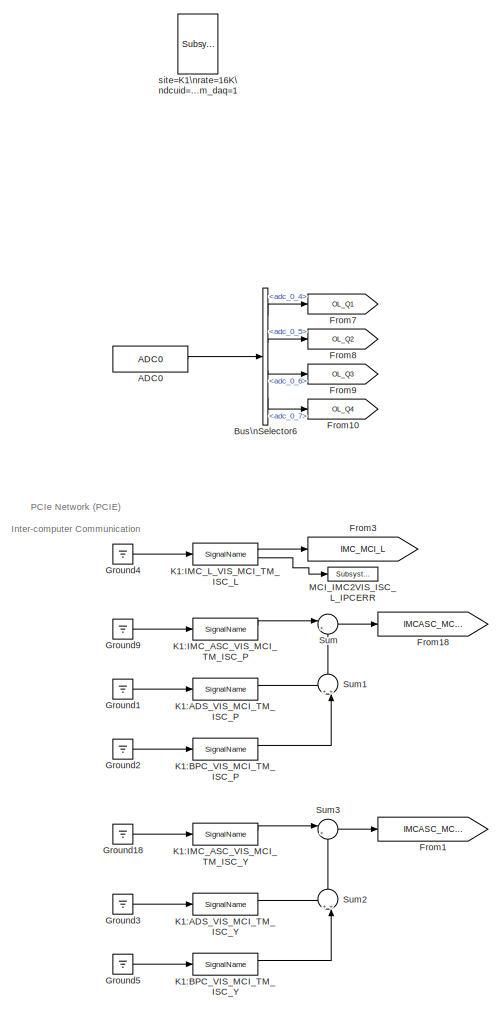
[diagram: root canvas - part 1/3, middle left region]
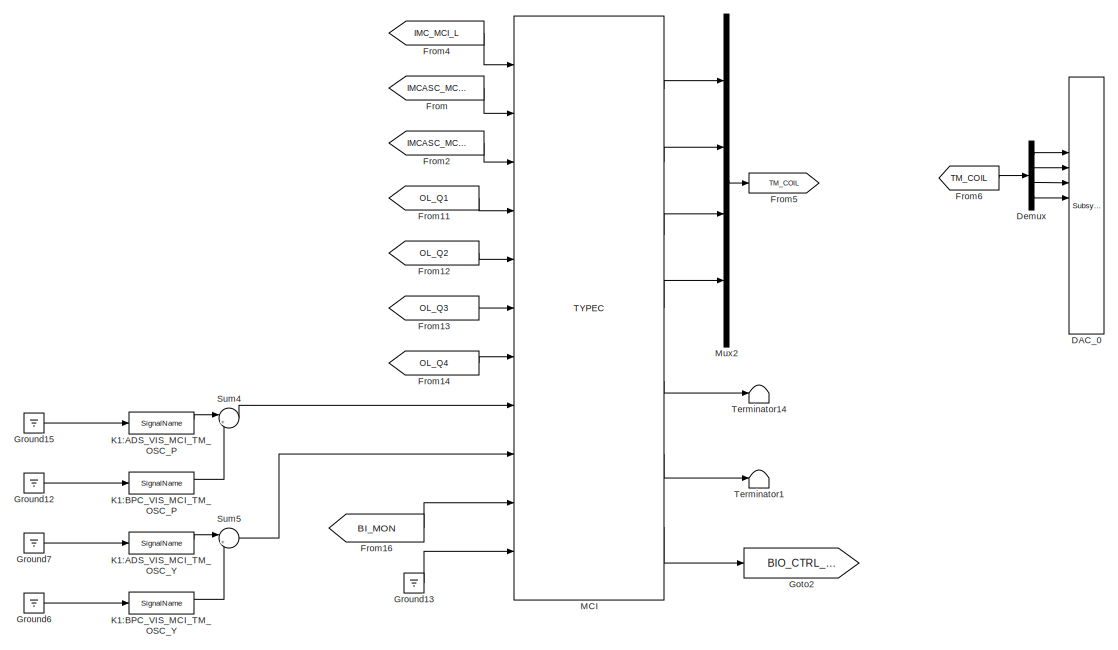
[diagram: root canvas - part 2/3, top center region]
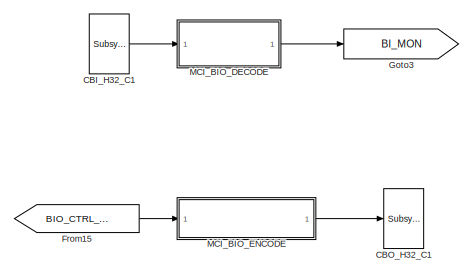
[diagram: root canvas - part 3/3, bottom right region]
MODEL k1vismci
KIND model
BLOCK [Reference] ADC0  REF=cdsAdcx0/ADC0
  AttributesFormatString = %<Description>\\n%<Tag>
  Description = type-GSC_16AI64SSA\ncard_num=0
  Ports = [0, 1]
  SID = 408
  SourceBlock = cdsAdcx0/ADC0
  SourceType = SubSystem
  Tag = cdsAdc
BLOCK [BusSelector] Bus\nSelector6
  AttributesFormatString = %<Description>
  Description = ADC Selector
  OutputSignals = adc_0_4,adc_0_5,adc_0_6,adc_0_7
  Ports = [1, 4]
  SID = 412
BLOCK [Reference] CBI_H32_C1  REF=cdsCDI64/Subsystem
  AttributesFormatString = %<Tag>\\n%<Description>
  Description = card_num=3
  Ports = [0, 1]
  SID = 615
  SourceBlock = cdsCDI64/Subsystem
  SourceType = SubSystem
  Tag = cdsCDI64
BLOCK [Reference] CBO_H32_C1  REF=cdsCDO64/Subsystem
  AttributesFormatString = %<Tag>\\n%<Description>
  Description = card_num=3
  Ports = [1]
  SID = 616
  SourceBlock = cdsCDO64/Subsystem
  SourceType = SubSystem
  Tag = cdsCDO64
BLOCK [Reference] DAC_0  REF=dac/Subsystem  (lib defined in slx_40ef132df75b, slx_b7657ccccc5b, +4 more)
  AttributesFormatString = %<Description>
  Description = type=GSC_16AO16,\ncard_num=0
  Ports = [16]
  SID = 477
  SourceBlock = dac/Subsystem
  SourceType = SubSystem
BLOCK [Demux] Demux
  DisplayOption = bar
  Ports = [1, 4]
  SID = 540
BLOCK [From] From
  GotoTag = IMCASC_MCI_P
  SID = 516
BLOCK [Goto] From1
  GotoTag = IMCASC_MCI_Y
  SID = 519
BLOCK [Goto] From10
  GotoTag = OL_Q4
  SID = 545
BLOCK [From] From11
  GotoTag = OL_Q1
  SID = 546
BLOCK [From] From12
  GotoTag = OL_Q2
  SID = 547
BLOCK [From] From13
  GotoTag = OL_Q3
  SID = 548
BLOCK [From] From14
  GotoTag = OL_Q4
  SID = 549
BLOCK [From] From15
  GotoTag = BIO_CTRL_OUT
  SID = 557
BLOCK [From] From16
  GotoTag = BI_MON
  SID = 609
BLOCK [Goto] From18
  GotoTag = IMCASC_MCI_P
  SID = 515
BLOCK [From] From2
  GotoTag = IMCASC_MCI_Y
  SID = 527
BLOCK [Goto] From3
  GotoTag = IMC_MCI_L
  SID = 529
BLOCK [From] From4
  GotoTag = IMC_MCI_L
  SID = 530
BLOCK [Goto] From5
  GotoTag = TM_COIL
  SID = 532
BLOCK [From] From6
  GotoTag = TM_COIL
  SID = 533
BLOCK [Goto] From7
  GotoTag = OL_Q1
  SID = 542
BLOCK [Goto] From8
  GotoTag = OL_Q2
  SID = 543
BLOCK [Goto] From9
  GotoTag = OL_Q3
  SID = 544
BLOCK [Goto] Goto2
  GotoTag = BIO_CTRL_OUT
  SID = 610
BLOCK [Goto] Goto3
  GotoTag = BI_MON
  SID = 558
BLOCK [Ground] Ground1
  SID = 617
BLOCK [Ground] Ground12
  SID = 512
BLOCK [Ground] Ground13
  SID = 468
BLOCK [Ground] Ground15
  SID = 470
BLOCK [Ground] Ground18
  SID = 520
BLOCK [Ground] Ground2
  SID = 621
BLOCK [Ground] Ground3
  SID = 623
BLOCK [Ground] Ground4
  SID = 481
BLOCK [Ground] Ground5
  SID = 624
BLOCK [Ground] Ground6
  SID = 637
BLOCK [Ground] Ground7
  SID = 638
BLOCK [Ground] Ground9
  SID = 509
BLOCK [Reference] K1:ADS_VIS_MCI_TM_ISC_P  REF=cdsIPCx/SignalName
  AttributesFormatString = %<Tag>
  Description = Inter-Process Communication via PCI Express network.
  Ports = [1, 2]
  SID = 618
  SourceBlock = cdsIPCx/SignalName
  SourceType = SubSystem
  Tag = cdsIPCx_PCIE
BLOCK [Reference] K1:ADS_VIS_MCI_TM_ISC_Y  REF=cdsIPCx/SignalName
  AttributesFormatString = %<Tag>
  Description = Inter-Process Communication via PCI Express network.
  Ports = [1, 2]
  SID = 625
  SourceBlock = cdsIPCx/SignalName
  SourceType = SubSystem
  Tag = cdsIPCx_PCIE
BLOCK [Reference] K1:ADS_VIS_MCI_TM_OSC_P  REF=cdsIPCx/SignalName
  AttributesFormatString = %<Tag>
  Description = Inter-Process Communication via PCI Express network.
  Ports = [1, 2]
  SID = 630
  SourceBlock = cdsIPCx/SignalName
  SourceType = SubSystem
  Tag = cdsIPCx_PCIE
BLOCK [Reference] K1:ADS_VIS_MCI_TM_OSC_Y  REF=cdsIPCx/SignalName
  AttributesFormatString = %<Tag>
  Description = Inter-Process Communication via PCI Express network.
  Ports = [1, 2]
  SID = 632
  SourceBlock = cdsIPCx/SignalName
  SourceType = SubSystem
  Tag = cdsIPCx_PCIE
BLOCK [Reference] K1:BPC_VIS_MCI_TM_ISC_P  REF=cdsIPCx/SignalName
  AttributesFormatString = %<Tag>
  Description = Inter-Process Communication via PCI Express network.
  Ports = [1, 2]
  SID = 622
  SourceBlock = cdsIPCx/SignalName
  SourceType = SubSystem
  Tag = cdsIPCx_PCIE
BLOCK [Reference] K1:BPC_VIS_MCI_TM_ISC_Y  REF=cdsIPCx/SignalName
  AttributesFormatString = %<Tag>
  Description = Inter-Process Communication via PCI Express network.
  Ports = [1, 2]
  SID = 626
  SourceBlock = cdsIPCx/SignalName
  SourceType = SubSystem
  Tag = cdsIPCx_PCIE
BLOCK [Reference] K1:BPC_VIS_MCI_TM_OSC_P  REF=cdsIPCx/SignalName
  AttributesFormatString = %<Tag>
  Description = Inter-Process Communication via PCI Express network.
  Ports = [1, 2]
  SID = 631
  SourceBlock = cdsIPCx/SignalName
  SourceType = SubSystem
  Tag = cdsIPCx_PCIE
BLOCK [Reference] K1:BPC_VIS_MCI_TM_OSC_Y  REF=cdsIPCx/SignalName
  AttributesFormatString = %<Tag>
  Description = Inter-Process Communication via PCI Express network.
  Ports = [1, 2]
  SID = 633
  SourceBlock = cdsIPCx/SignalName
  SourceType = SubSystem
  Tag = cdsIPCx_PCIE
BLOCK [Reference] K1:IMC_ASC_VIS_MCI_TM_ISC_P  REF=cdsIPCx/SignalName
  AttributesFormatString = %<Tag>
  Description = Inter-Process Communication via PCI Express network.
  Ports = [1, 2]
  SID = 508
  SourceBlock = cdsIPCx/SignalName
  SourceType = SubSystem
  Tag = cdsIPCx_PCIE
BLOCK [Reference] K1:IMC_ASC_VIS_MCI_TM_ISC_Y  REF=cdsIPCx/SignalName
  AttributesFormatString = %<Tag>
  Description = Inter-Process Communication via PCI Express network.
  Ports = [1, 2]
  SID = 521
  SourceBlock = cdsIPCx/SignalName
  SourceType = SubSystem
  Tag = cdsIPCx_PCIE
BLOCK [Reference] K1:IMC_L_VIS_MCI_TM_ISC_L  REF=cdsIPCx/SignalName
  AttributesFormatString = %<Tag>
  Description = Inter-Process Communication via PCI Express network.
  Ports = [1, 2]
  SID = 479
  SourceBlock = cdsIPCx/SignalName
  SourceType = SubSystem
  Tag = cdsIPCx_PCIE
BLOCK [Reference] MCI  REF=TYPEC_SINGLE_MASTER/TYPEC
  AttributesFormatString = %<Description>
  Description = TYPEC SINGLE MASTER
  Ports = [11, 7]
  SID = 611
  SourceBlock = TYPEC_SINGLE_MASTER/TYPEC
  SourceType = SubSystem
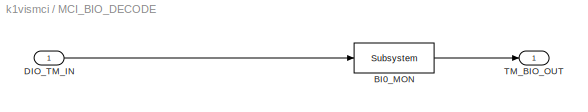
BLOCK [SubSystem] MCI_BIO_DECODE
  Ports = [1, 1]
  RequestExecContextInheritance = off
  SID = 559
  Variant = off
BLOCK [Reference] MCI_BIO_DECODE/BI0_MON  REF=cdsEpicsOut/Subsystem
  AttributesFormatString = %<Tag>
  Description = Purpose:                                          \nOutput a FE signal to an EPICS channel.           \n                                                  \nOperation:                                        \nTakes input value and passes it to EPICS record.  \n                                                  \nUsage:                                            \nName the part with the desired EPICS...<+14ch>  <repeated x3 — deduplicated; at blocks: BI0_MON, DIO_0_OUT, MCI_IMC2VIS_ISC_L_IPCERR>
  Ports = [1, 1]
  SID = 561
  SourceBlock = cdsEpicsOut/Subsystem
  SourceType = SubSystem
  Tag = cdsEpicsOutput
BLOCK [Inport] MCI_BIO_DECODE/DIO_TM_IN
  IconDisplay = Port number
  SID = 560
BLOCK [Outport] MCI_BIO_DECODE/TM_BIO_OUT
  IconDisplay = Port number
  SID = 562
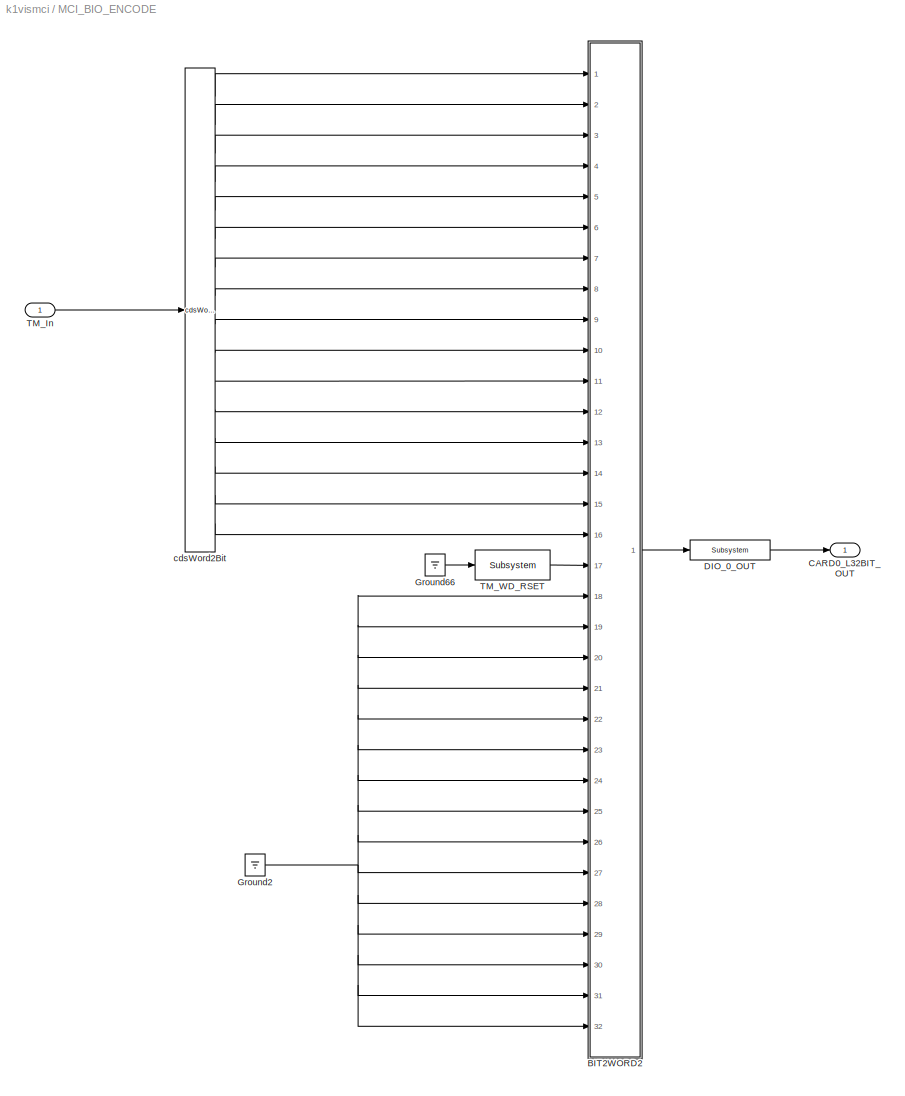
BLOCK [SubSystem] MCI_BIO_ENCODE
  Ports = [1, 1]
  RequestExecContextInheritance = off
  SID = 563
  Variant = off
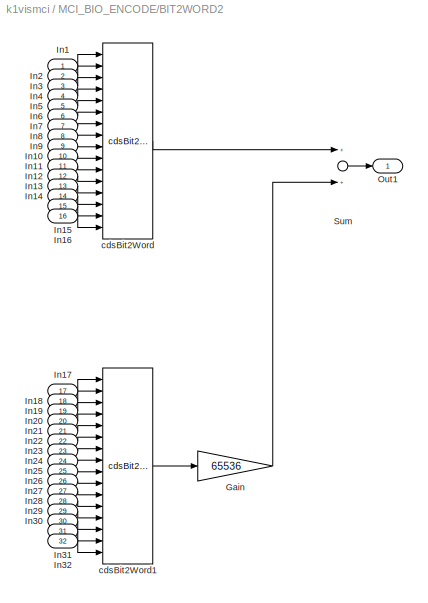
BLOCK [SubSystem] MCI_BIO_ENCODE/BIT2WORD2
  Ports = [32, 1]
  RequestExecContextInheritance = off
  SID = 565
  Variant = off
BLOCK [Gain] MCI_BIO_ENCODE/BIT2WORD2/Gain
  Gain = 65536
  OutDataTypeStr = Inherit: Inherit via internal rule
  ParamDataTypeStr = Inherit: Inherit via internal rule
  SID = 598
  SaturateOnIntegerOverflow = off
BLOCK [Inport] MCI_BIO_ENCODE/BIT2WORD2/In1
  IconDisplay = Port number
  SID = 566
BLOCK [Inport] MCI_BIO_ENCODE/BIT2WORD2/In10
  IconDisplay = Port number
  Port = 10
  SID = 575
BLOCK [Inport] MCI_BIO_ENCODE/BIT2WORD2/In11
  IconDisplay = Port number
  Port = 11
  SID = 576
BLOCK [Inport] MCI_BIO_ENCODE/BIT2WORD2/In12
  IconDisplay = Port number
  Port = 12
  SID = 577
BLOCK [Inport] MCI_BIO_ENCODE/BIT2WORD2/In13
  IconDisplay = Port number
  Port = 13
  SID = 578
BLOCK [Inport] MCI_BIO_ENCODE/BIT2WORD2/In14
  IconDisplay = Port number
  Port = 14
  SID = 579
BLOCK [Inport] MCI_BIO_ENCODE/BIT2WORD2/In15
  IconDisplay = Port number
  Port = 15
  SID = 580
BLOCK [Inport] MCI_BIO_ENCODE/BIT2WORD2/In16
  IconDisplay = Port number
  Port = 16
  SID = 581
BLOCK [Inport] MCI_BIO_ENCODE/BIT2WORD2/In17
  IconDisplay = Port number
  Port = 17
  SID = 582
BLOCK [Inport] MCI_BIO_ENCODE/BIT2WORD2/In18
  IconDisplay = Port number
  Port = 18
  SID = 583
BLOCK [Inport] MCI_BIO_ENCODE/BIT2WORD2/In19
  IconDisplay = Port number
  Port = 19
  SID = 584
BLOCK [Inport] MCI_BIO_ENCODE/BIT2WORD2/In2
  IconDisplay = Port number
  Port = 2
  SID = 567
BLOCK [Inport] MCI_BIO_ENCODE/BIT2WORD2/In20
  IconDisplay = Port number
  Port = 20
  SID = 585
BLOCK [Inport] MCI_BIO_ENCODE/BIT2WORD2/In21
  IconDisplay = Port number
  Port = 21
  SID = 586
BLOCK [Inport] MCI_BIO_ENCODE/BIT2WORD2/In22
  IconDisplay = Port number
  Port = 22
  SID = 587
BLOCK [Inport] MCI_BIO_ENCODE/BIT2WORD2/In23
  IconDisplay = Port number
  Port = 23
  SID = 588
BLOCK [Inport] MCI_BIO_ENCODE/BIT2WORD2/In24
  IconDisplay = Port number
  Port = 24
  SID = 589
BLOCK [Inport] MCI_BIO_ENCODE/BIT2WORD2/In25
  IconDisplay = Port number
  Port = 25
  SID = 590
BLOCK [Inport] MCI_BIO_ENCODE/BIT2WORD2/In26
  IconDisplay = Port number
  Port = 26
  SID = 591
BLOCK [Inport] MCI_BIO_ENCODE/BIT2WORD2/In27
  IconDisplay = Port number
  Port = 27
  SID = 592
BLOCK [Inport] MCI_BIO_ENCODE/BIT2WORD2/In28
  IconDisplay = Port number
  Port = 28
  SID = 593
BLOCK [Inport] MCI_BIO_ENCODE/BIT2WORD2/In29
  IconDisplay = Port number
  Port = 29
  SID = 594
BLOCK [Inport] MCI_BIO_ENCODE/BIT2WORD2/In3
  IconDisplay = Port number
  Port = 3
  SID = 568
BLOCK [Inport] MCI_BIO_ENCODE/BIT2WORD2/In30
  IconDisplay = Port number
  Port = 30
  SID = 595
BLOCK [Inport] MCI_BIO_ENCODE/BIT2WORD2/In31
  IconDisplay = Port number
  Port = 31
  SID = 596
BLOCK [Inport] MCI_BIO_ENCODE/BIT2WORD2/In32
  IconDisplay = Port number
  Port = 32
  SID = 597
BLOCK [Inport] MCI_BIO_ENCODE/BIT2WORD2/In4
  IconDisplay = Port number
  Port = 4
  SID = 569
BLOCK [Inport] MCI_BIO_ENCODE/BIT2WORD2/In5
  IconDisplay = Port number
  Port = 5
  SID = 570
BLOCK [Inport] MCI_BIO_ENCODE/BIT2WORD2/In6
  IconDisplay = Port number
  Port = 6
  SID = 571
BLOCK [Inport] MCI_BIO_ENCODE/BIT2WORD2/In7
  IconDisplay = Port number
  Port = 7
  SID = 572
BLOCK [Inport] MCI_BIO_ENCODE/BIT2WORD2/In8
  IconDisplay = Port number
  Port = 8
  SID = 573
BLOCK [Inport] MCI_BIO_ENCODE/BIT2WORD2/In9
  IconDisplay = Port number
  Port = 9
  SID = 574
BLOCK [Outport] MCI_BIO_ENCODE/BIT2WORD2/Out1
  IconDisplay = Port number
  SID = 602
BLOCK [Sum] MCI_BIO_ENCODE/BIT2WORD2/Sum
  InputSameDT = off
  OutDataTypeStr = Inherit: Inherit via internal rule
  Ports = [2, 1]
  SID = 599
  SaturateOnIntegerOverflow = off
BLOCK [Reference] MCI_BIO_ENCODE/BIT2WORD2/cdsBit2Word  REF=cdsBit2Word/cdsBit2Word
  AttributesFormatString = %<Tag>
  Description = Forms single 16 bit integer from 16 0/1 inputs.
  Ports = [16, 1]
  SID = 600
  SourceBlock = cdsBit2Word/cdsBit2Word
  SourceType = SubSystem
  Tag = cdsBit2Word
BLOCK [Reference] MCI_BIO_ENCODE/BIT2WORD2/cdsBit2Word1  REF=cdsBit2Word/cdsBit2Word
  AttributesFormatString = %<Tag>
  Description = Forms single 16 bit integer from 16 0/1 inputs.
  Ports = [16, 1]
  SID = 601
  SourceBlock = cdsBit2Word/cdsBit2Word
  SourceType = SubSystem
  Tag = cdsBit2Word
BLOCK [Outport] MCI_BIO_ENCODE/CARD0_L32BIT_OUT
  IconDisplay = Port number
  SID = 608
BLOCK [Reference] MCI_BIO_ENCODE/DIO_0_OUT  REF=cdsEpicsOut/Subsystem
  AttributesFormatString = %<Tag>
  Ports = [1, 1]
  SID = 603
  SourceBlock = cdsEpicsOut/Subsystem
  SourceType = SubSystem
  Tag = cdsEpicsOutput
BLOCK [Ground] MCI_BIO_ENCODE/Ground2
  SID = 604
BLOCK [Ground] MCI_BIO_ENCODE/Ground66
  SID = 605
BLOCK [Inport] MCI_BIO_ENCODE/TM_In
  IconDisplay = Port number
  SID = 564
BLOCK [Reference] MCI_BIO_ENCODE/TM_WD_RSET  REF=cdsEpicsBinIn/Subsystem
  AttributesFormatString = %<Tag>
  Description = Purpose:                                                                            \nCreate an EPICS binary (0 or 1) input channel to the FE realtime controls.          \n                                                                                    \nOperation:                                                                          \nOutputs value from an EPICS ai record. Value is binary i...<+252ch>
  Ports = [1, 1]
  SID = 606
  SourceBlock = cdsEpicsBinIn/Subsystem
  SourceType = SubSystem
  Tag = cdsEpicsBinIn
BLOCK [Reference] MCI_BIO_ENCODE/cdsWord2Bit  REF=cdsWord2Bit/cdsWord2Bit
  AttributesFormatString = cdsWord2Bit
  Description = Generate 16 0/1 outputs from single 16-bit integer input
  Ports = [1, 16]
  SID = 607
  SourceBlock = cdsWord2Bit/cdsWord2Bit
  SourceType = SubSystem
  Tag = cdsWord2Bit
BLOCK [Reference] MCI_IMC2VIS_ISC_L_IPCERR  REF=cdsEpicsOut/Subsystem
  AttributesFormatString = %<Tag>
  Ports = [1, 1]
  SID = 480
  SourceBlock = cdsEpicsOut/Subsystem
  SourceType = SubSystem
  Tag = cdsEpicsOutput
BLOCK [Mux] Mux2
  DisplayOption = bar
  Ports = [4, 1]
  SID = 541
BLOCK [Sum] Sum
  IconShape = round
  InputSameDT = off
  Inputs = |++
  OutDataTypeStr = Inherit: Inherit via internal rule
  Ports = [2, 1]
  SID = 619
  SaturateOnIntegerOverflow = off
BLOCK [Sum] Sum1
  IconShape = round
  InputSameDT = off
  Inputs = ++|
  OutDataTypeStr = Inherit: Inherit via internal rule
  Ports = [2, 1]
  SID = 620
  SaturateOnIntegerOverflow = off
BLOCK [Sum] Sum2
  IconShape = round
  InputSameDT = off
  Inputs = ++|
  OutDataTypeStr = Inherit: Inherit via internal rule
  Ports = [2, 1]
  SID = 627
  SaturateOnIntegerOverflow = off
BLOCK [Sum] Sum3
  IconShape = round
  InputSameDT = off
  Inputs = |++
  OutDataTypeStr = Inherit: Inherit via internal rule
  Ports = [2, 1]
  SID = 628
  SaturateOnIntegerOverflow = off
BLOCK [Sum] Sum4
  IconShape = round
  InputSameDT = off
  Inputs = |++
  OutDataTypeStr = Inherit: Inherit via internal rule
  Ports = [2, 1]
  SID = 636
  SaturateOnIntegerOverflow = off
BLOCK [Sum] Sum5
  IconShape = round
  InputSameDT = off
  Inputs = |++
  OutDataTypeStr = Inherit: Inherit via internal rule
  Ports = [2, 1]
  SID = 639
  SaturateOnIntegerOverflow = off
BLOCK [Terminator] Terminator1
  SID = 612
BLOCK [Terminator] Terminator14
  SID = 449
BLOCK [Reference] site=K1\nrate=16K\ndcuid=38\nhost=k1imc0\nspecific_cpu=2\nadcSlave=1\nshmem_daq=1  REF=cdsParameters/Subsystem
  AttributesFormatString = %<Tag>
  Description = Purpose:                                                                                                                                                                                                                                \nProvide system parameters to the FE code generator to properly configure the generated EPICS names, rep rate of the FE controller, and the Data Acquisition node ID fo...<+2934ch>
  Ports = []
  SID = 478
  SourceBlock = cdsParameters/Subsystem
  SourceType = SubSystem
  Tag = cdsParameters
ANNOTATION (root): \n \n PCIe Network (PCIE) \n Inter-computer Communication
LINE ADC0:1 -> Bus\nSelector6:1
LINE Bus\nSelector6:1 -> From7:1
LINE Bus\nSelector6:2 -> From8:1
LINE Bus\nSelector6:3 -> From9:1
LINE Bus\nSelector6:4 -> From10:1
LINE CBI_H32_C1:1 -> MCI_BIO_DECODE:1
LINE Demux:1 -> DAC_0:5
LINE Demux:2 -> DAC_0:6
LINE Demux:3 -> DAC_0:7
LINE Demux:4 -> DAC_0:8
LINE From11:1 -> MCI:4
LINE From12:1 -> MCI:5
LINE From13:1 -> MCI:6
LINE From14:1 -> MCI:7
LINE From15:1 -> MCI_BIO_ENCODE:1
LINE From16:1 -> MCI:10
LINE From2:1 -> MCI:3
LINE From4:1 -> MCI:1
LINE From6:1 -> Demux:1
LINE From:1 -> MCI:2
LINE Ground12:1 -> K1:BPC_VIS_MCI_TM_OSC_P:1
LINE Ground13:1 -> MCI:11
LINE Ground15:1 -> K1:ADS_VIS_MCI_TM_OSC_P:1
LINE Ground18:1 -> K1:IMC_ASC_VIS_MCI_TM_ISC_Y:1
LINE Ground1:1 -> K1:ADS_VIS_MCI_TM_ISC_P:1
LINE Ground2:1 -> K1:BPC_VIS_MCI_TM_ISC_P:1
LINE Ground3:1 -> K1:ADS_VIS_MCI_TM_ISC_Y:1
LINE Ground4:1 -> K1:IMC_L_VIS_MCI_TM_ISC_L:1
LINE Ground5:1 -> K1:BPC_VIS_MCI_TM_ISC_Y:1
LINE Ground6:1 -> K1:BPC_VIS_MCI_TM_OSC_Y:1
LINE Ground7:1 -> K1:ADS_VIS_MCI_TM_OSC_Y:1
LINE Ground9:1 -> K1:IMC_ASC_VIS_MCI_TM_ISC_P:1
LINE K1:ADS_VIS_MCI_TM_ISC_P:1 -> Sum1:1
LINE K1:ADS_VIS_MCI_TM_ISC_Y:1 -> Sum2:1
LINE K1:ADS_VIS_MCI_TM_OSC_P:1 -> Sum4:1
LINE K1:ADS_VIS_MCI_TM_OSC_Y:1 -> Sum5:1
LINE K1:BPC_VIS_MCI_TM_ISC_P:1 -> Sum1:2
LINE K1:BPC_VIS_MCI_TM_ISC_Y:1 -> Sum2:2
LINE K1:BPC_VIS_MCI_TM_OSC_P:1 -> Sum4:2
LINE K1:BPC_VIS_MCI_TM_OSC_Y:1 -> Sum5:2
LINE K1:IMC_ASC_VIS_MCI_TM_ISC_P:1 -> Sum:1
LINE K1:IMC_ASC_VIS_MCI_TM_ISC_Y:1 -> Sum3:1
LINE K1:IMC_L_VIS_MCI_TM_ISC_L:1 -> From3:1
LINE K1:IMC_L_VIS_MCI_TM_ISC_L:2 -> MCI_IMC2VIS_ISC_L_IPCERR:1
LINE MCI:1 -> Mux2:1
LINE MCI:2 -> Mux2:2
LINE MCI:3 -> Mux2:3
LINE MCI:4 -> Mux2:4
LINE MCI:5 -> Terminator14:1
LINE MCI:6 -> Terminator1:1
LINE MCI:7 -> Goto2:1
LINE MCI_BIO_DECODE/BI0_MON:1 -> MCI_BIO_DECODE/TM_BIO_OUT:1
LINE MCI_BIO_DECODE/DIO_TM_IN:1 -> MCI_BIO_DECODE/BI0_MON:1
LINE MCI_BIO_DECODE:1 -> Goto3:1
LINE MCI_BIO_ENCODE/BIT2WORD2/Gain:1 -> MCI_BIO_ENCODE/BIT2WORD2/Sum:2
LINE MCI_BIO_ENCODE/BIT2WORD2/In10:1 -> MCI_BIO_ENCODE/BIT2WORD2/cdsBit2Word:10
LINE MCI_BIO_ENCODE/BIT2WORD2/In11:1 -> MCI_BIO_ENCODE/BIT2WORD2/cdsBit2Word:11
LINE MCI_BIO_ENCODE/BIT2WORD2/In12:1 -> MCI_BIO_ENCODE/BIT2WORD2/cdsBit2Word:12
LINE MCI_BIO_ENCODE/BIT2WORD2/In13:1 -> MCI_BIO_ENCODE/BIT2WORD2/cdsBit2Word:13
LINE MCI_BIO_ENCODE/BIT2WORD2/In14:1 -> MCI_BIO_ENCODE/BIT2WORD2/cdsBit2Word:14
LINE MCI_BIO_ENCODE/BIT2WORD2/In15:1 -> MCI_BIO_ENCODE/BIT2WORD2/cdsBit2Word:15
LINE MCI_BIO_ENCODE/BIT2WORD2/In16:1 -> MCI_BIO_ENCODE/BIT2WORD2/cdsBit2Word:16
LINE MCI_BIO_ENCODE/BIT2WORD2/In17:1 -> MCI_BIO_ENCODE/BIT2WORD2/cdsBit2Word1:1
LINE MCI_BIO_ENCODE/BIT2WORD2/In18:1 -> MCI_BIO_ENCODE/BIT2WORD2/cdsBit2Word1:2
LINE MCI_BIO_ENCODE/BIT2WORD2/In19:1 -> MCI_BIO_ENCODE/BIT2WORD2/cdsBit2Word1:3
LINE MCI_BIO_ENCODE/BIT2WORD2/In1:1 -> MCI_BIO_ENCODE/BIT2WORD2/cdsBit2Word:1
LINE MCI_BIO_ENCODE/BIT2WORD2/In20:1 -> MCI_BIO_ENCODE/BIT2WORD2/cdsBit2Word1:4
LINE MCI_BIO_ENCODE/BIT2WORD2/In21:1 -> MCI_BIO_ENCODE/BIT2WORD2/cdsBit2Word1:5
LINE MCI_BIO_ENCODE/BIT2WORD2/In22:1 -> MCI_BIO_ENCODE/BIT2WORD2/cdsBit2Word1:6
LINE MCI_BIO_ENCODE/BIT2WORD2/In23:1 -> MCI_BIO_ENCODE/BIT2WORD2/cdsBit2Word1:7
LINE MCI_BIO_ENCODE/BIT2WORD2/In24:1 -> MCI_BIO_ENCODE/BIT2WORD2/cdsBit2Word1:8
LINE MCI_BIO_ENCODE/BIT2WORD2/In25:1 -> MCI_BIO_ENCODE/BIT2WORD2/cdsBit2Word1:9
LINE MCI_BIO_ENCODE/BIT2WORD2/In26:1 -> MCI_BIO_ENCODE/BIT2WORD2/cdsBit2Word1:10
LINE MCI_BIO_ENCODE/BIT2WORD2/In27:1 -> MCI_BIO_ENCODE/BIT2WORD2/cdsBit2Word1:11
LINE MCI_BIO_ENCODE/BIT2WORD2/In28:1 -> MCI_BIO_ENCODE/BIT2WORD2/cdsBit2Word1:12
LINE MCI_BIO_ENCODE/BIT2WORD2/In29:1 -> MCI_BIO_ENCODE/BIT2WORD2/cdsBit2Word1:13
LINE MCI_BIO_ENCODE/BIT2WORD2/In2:1 -> MCI_BIO_ENCODE/BIT2WORD2/cdsBit2Word:2
LINE MCI_BIO_ENCODE/BIT2WORD2/In30:1 -> MCI_BIO_ENCODE/BIT2WORD2/cdsBit2Word1:14
LINE MCI_BIO_ENCODE/BIT2WORD2/In31:1 -> MCI_BIO_ENCODE/BIT2WORD2/cdsBit2Word1:15
LINE MCI_BIO_ENCODE/BIT2WORD2/In32:1 -> MCI_BIO_ENCODE/BIT2WORD2/cdsBit2Word1:16
LINE MCI_BIO_ENCODE/BIT2WORD2/In3:1 -> MCI_BIO_ENCODE/BIT2WORD2/cdsBit2Word:3
LINE MCI_BIO_ENCODE/BIT2WORD2/In4:1 -> MCI_BIO_ENCODE/BIT2WORD2/cdsBit2Word:4
LINE MCI_BIO_ENCODE/BIT2WORD2/In5:1 -> MCI_BIO_ENCODE/BIT2WORD2/cdsBit2Word:5
LINE MCI_BIO_ENCODE/BIT2WORD2/In6:1 -> MCI_BIO_ENCODE/BIT2WORD2/cdsBit2Word:6
LINE MCI_BIO_ENCODE/BIT2WORD2/In7:1 -> MCI_BIO_ENCODE/BIT2WORD2/cdsBit2Word:7
LINE MCI_BIO_ENCODE/BIT2WORD2/In8:1 -> MCI_BIO_ENCODE/BIT2WORD2/cdsBit2Word:8
LINE MCI_BIO_ENCODE/BIT2WORD2/In9:1 -> MCI_BIO_ENCODE/BIT2WORD2/cdsBit2Word:9
LINE MCI_BIO_ENCODE/BIT2WORD2/Sum:1 -> MCI_BIO_ENCODE/BIT2WORD2/Out1:1
LINE MCI_BIO_ENCODE/BIT2WORD2/cdsBit2Word1:1 -> MCI_BIO_ENCODE/BIT2WORD2/Gain:1
LINE MCI_BIO_ENCODE/BIT2WORD2/cdsBit2Word:1 -> MCI_BIO_ENCODE/BIT2WORD2/Sum:1
LINE MCI_BIO_ENCODE/BIT2WORD2:1 -> MCI_BIO_ENCODE/DIO_0_OUT:1
LINE MCI_BIO_ENCODE/DIO_0_OUT:1 -> MCI_BIO_ENCODE/CARD0_L32BIT_OUT:1
NET MCI_BIO_ENCODE/Ground2:1 -> MCI_BIO_ENCODE/BIT2WORD2:18, MCI_BIO_ENCODE/BIT2WORD2:19, MCI_BIO_ENCODE/BIT2WORD2:20, MCI_BIO_ENCODE/BIT2WORD2:21, MCI_BIO_ENCODE/BIT2WORD2:22, MCI_BIO_ENCODE/BIT2WORD2:23, MCI_BIO_ENCODE/BIT2WORD2:24, MCI_BIO_ENCODE/BIT2WORD2:25, MCI_BIO_ENCODE/BIT2WORD2:26, MCI_BIO_ENCODE/BIT2WORD2:27, MCI_BIO_ENCODE/BIT2WORD2:28, MCI_BIO_ENCODE/BIT2WORD2:29, MCI_BIO_ENCODE/BIT2WORD2:30, MCI_BIO_ENCODE/BIT2WORD2:31, MCI_BIO_ENCODE/BIT2WORD2:32
LINE MCI_BIO_ENCODE/Ground66:1 -> MCI_BIO_ENCODE/TM_WD_RSET:1
LINE MCI_BIO_ENCODE/TM_In:1 -> MCI_BIO_ENCODE/cdsWord2Bit:1
LINE MCI_BIO_ENCODE/TM_WD_RSET:1 -> MCI_BIO_ENCODE/BIT2WORD2:17
LINE MCI_BIO_ENCODE/cdsWord2Bit:1 -> MCI_BIO_ENCODE/BIT2WORD2:1
LINE MCI_BIO_ENCODE/cdsWord2Bit:10 -> MCI_BIO_ENCODE/BIT2WORD2:10
LINE MCI_BIO_ENCODE/cdsWord2Bit:11 -> MCI_BIO_ENCODE/BIT2WORD2:11
LINE MCI_BIO_ENCODE/cdsWord2Bit:12 -> MCI_BIO_ENCODE/BIT2WORD2:12
LINE MCI_BIO_ENCODE/cdsWord2Bit:13 -> MCI_BIO_ENCODE/BIT2WORD2:13
LINE MCI_BIO_ENCODE/cdsWord2Bit:14 -> MCI_BIO_ENCODE/BIT2WORD2:14
LINE MCI_BIO_ENCODE/cdsWord2Bit:15 -> MCI_BIO_ENCODE/BIT2WORD2:15
LINE MCI_BIO_ENCODE/cdsWord2Bit:16 -> MCI_BIO_ENCODE/BIT2WORD2:16
LINE MCI_BIO_ENCODE/cdsWord2Bit:2 -> MCI_BIO_ENCODE/BIT2WORD2:2
LINE MCI_BIO_ENCODE/cdsWord2Bit:3 -> MCI_BIO_ENCODE/BIT2WORD2:3
LINE MCI_BIO_ENCODE/cdsWord2Bit:4 -> MCI_BIO_ENCODE/BIT2WORD2:4
LINE MCI_BIO_ENCODE/cdsWord2Bit:5 -> MCI_BIO_ENCODE/BIT2WORD2:5
LINE MCI_BIO_ENCODE/cdsWord2Bit:6 -> MCI_BIO_ENCODE/BIT2WORD2:6
LINE MCI_BIO_ENCODE/cdsWord2Bit:7 -> MCI_BIO_ENCODE/BIT2WORD2:7
LINE MCI_BIO_ENCODE/cdsWord2Bit:8 -> MCI_BIO_ENCODE/BIT2WORD2:8
LINE MCI_BIO_ENCODE/cdsWord2Bit:9 -> MCI_BIO_ENCODE/BIT2WORD2:9
LINE MCI_BIO_ENCODE:1 -> CBO_H32_C1:1
LINE Mux2:1 -> From5:1
LINE Sum1:1 -> Sum:2
LINE Sum2:1 -> Sum3:2
LINE Sum3:1 -> From1:1
LINE Sum4:1 -> MCI:8
LINE Sum5:1 -> MCI:9
LINE Sum:1 -> From18:1
note: NET lines group one-source signal fan-out (src -> all destinations, sorted); 1:1 wires keep LINE
